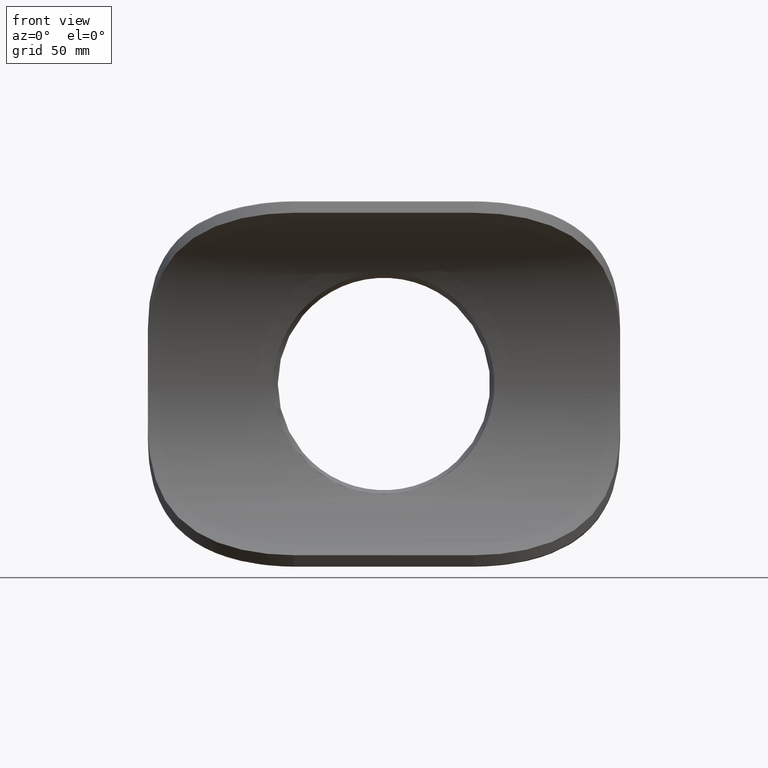
[diagram: clean part render]
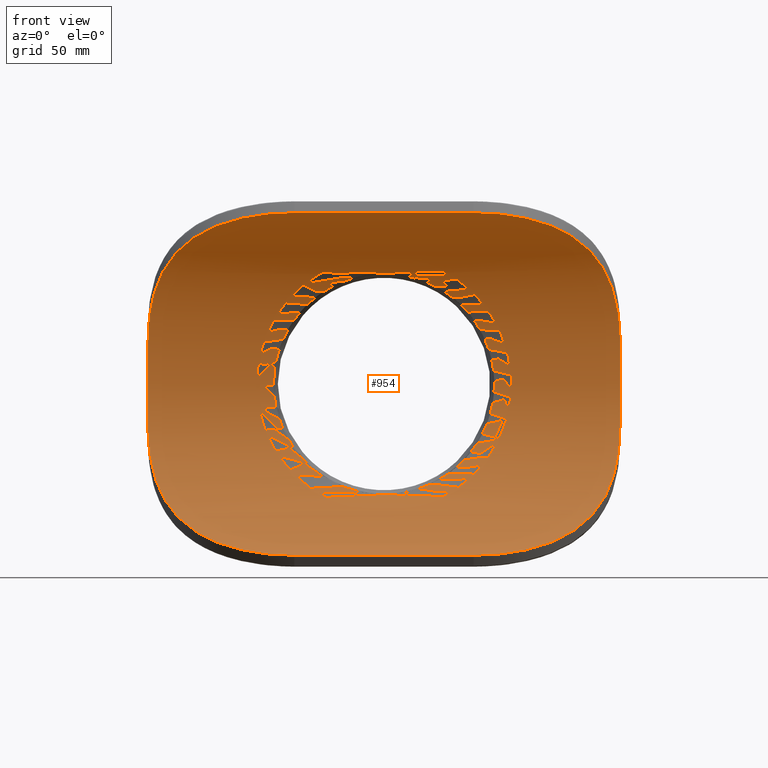
[diagram: same view with one face highlighted and labeled with its STEP entity id]
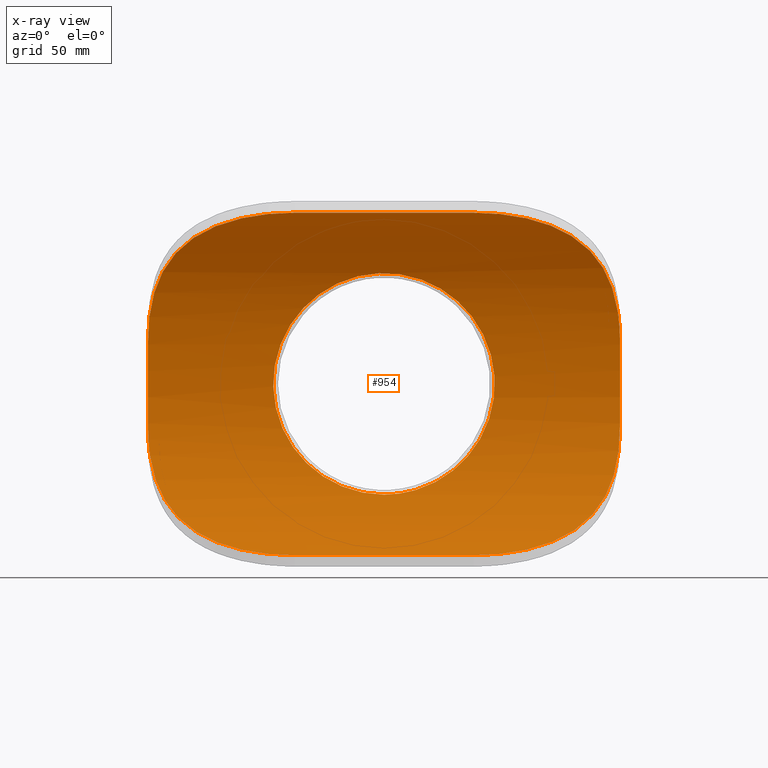
[diagram: x-ray of the same camera — body ghosted, the highlighted face saturated]
A machine part, front view. The second image highlights one B-rep face of the part: STEP entity #954.
The next image is the same camera in x-ray: the body ghosted, the highlighted face saturated — about 0% of this face is hidden behind the body in this view.
In plain terms, the highlighted cylindrical surface (partial cylindrical patch) has radius 125 mm, axis along (1, 0, 0).
Its self-contained STEP definition (entity closure, byte-faithful):
#20=LINE('',#2170,#48);
#42=LINE('',#2731,#70);
#48=VECTOR('',#1244,110.);
#70=VECTOR('',#1340,110.);
#98=B_SPLINE_CURVE_WITH_KNOTS('',3,(#1744,#1745,#1746,#1747,#1748,#1749,
#1750,#1751,#1752,#1753,#1754,#1755,#1756,#1757,#1758,#1759,#1760,#1761,
#1762,#1763,#1764,#1765,#1766,#1767,#1768,#1769,#1770,#1771,#1772,#1773,
#1774,#1775,#1776,#1777,#1778,#1779,#1780,#1781,#1782,#1783,#1784,#1785,
#1786,#1787,#1788,#1789,#1790,#1791,#1792,#1793,#1794,#1795,#1796,#1797,
#1798,#1799,#1800,#1801,#1802,#1803,#1804,#1805,#1806,#1807,#1808,#1809),
 .UNSPECIFIED.,.T.,.F.,(4,2,2,2,2,2,2,2,2,2,2,2,2,2,2,2,2,2,2,2,2,2,2,2,
2,2,2,2,2,2,2,2,4),(0.,1.31530072136476,2.63060144272952,3.94590216409428,
5.26120288545904,6.57120301846094,7.88120315146285,9.19120328446475,10.5012034174667,
11.8112035504686,13.1212036834705,14.4312038164724,15.7412039494743,17.056504670839,
18.3718053922038,19.6871061135686,21.0024068349333,22.3177075562981,23.6330082776628,
24.9483089990276,26.2636097203924,27.5736098533943,28.8836099863962,30.1936101193981,
31.5036102524,32.8136103854019,34.1236105184038,35.4336106514057,36.7436107844076,
38.0589115057724,39.3742122271371,40.6895129485019,42.0048136698666),
 .UNSPECIFIED.);
#107=B_SPLINE_CURVE_WITH_KNOTS('',3,(#2175,#2176,#2177,#2178,#2179,#2180,
#2181,#2182,#2183,#2184,#2185,#2186,#2187,#2188,#2189,#2190,#2191,#2192,
#2193,#2194),.UNSPECIFIED.,.F.,.F.,(4,2,2,2,2,2,2,2,2,4),(15.4930000426412,
16.9358712625984,18.0669147166328,19.1979581706672,20.3290016247016,21.4600450787359,
23.6403781182101,25.8207111576843,28.0010441971584,30.1813772366326),
 .UNSPECIFIED.);
#108=B_SPLINE_CURVE_WITH_KNOTS('',3,(#2202,#2203,#2204,#2205,#2206,#2207,
#2208,#2209,#2210,#2211,#2212,#2213,#2214,#2215,#2216,#2217,#2218,#2219,
#2220,#2221),.UNSPECIFIED.,.F.,.F.,(4,2,2,2,2,2,2,2,2,4),(30.1818136976187,
32.3621467370929,34.542479776567,36.7228128160412,38.9031458555153,40.0341893095497,
41.1652327635841,42.2962762176185,43.4273196716529,44.8701908916101),
 .UNSPECIFIED.);
#121=B_SPLINE_CURVE_WITH_KNOTS('',3,(#2684,#2685,#2686,#2687,#2688,#2689,
#2690,#2691,#2692,#2693,#2694,#2695,#2696,#2697,#2698,#2699,#2700,#2701,
#2702,#2703),.UNSPECIFIED.,.F.,.F.,(4,2,2,2,2,2,2,2,2,4),(15.4934365036274,
16.9363077235845,18.0673511776189,19.1983946316533,20.3294380856877,21.4604815397221,
23.6408145791962,25.8211476186704,28.0014806581445,30.1818136976187),
 .UNSPECIFIED.);
#122=B_SPLINE_CURVE_WITH_KNOTS('',3,(#2710,#2711,#2712,#2713,#2714,#2715,
#2716,#2717,#2718,#2719,#2720,#2721,#2722,#2723,#2724,#2725,#2726,#2727,
#2728,#2729),.UNSPECIFIED.,.F.,.F.,(4,2,2,2,2,2,2,2,2,4),(30.1810965952884,
32.3614296347626,34.5417626742367,36.7220957137109,38.9024287531851,40.0334722072194,
41.1645156612538,42.2955591152882,43.4266025693226,44.8694737892798),
 .UNSPECIFIED.);
#166=FACE_BOUND('',#363,.T.);
#195=CYLINDRICAL_SURFACE('',#1075,125.);
#261=FACE_OUTER_BOUND('',#362,.T.);
#362=EDGE_LOOP('',(#857,#858,#859,#860,#861,#862,#863,#864));
#363=EDGE_LOOP('',(#865));
#406=CIRCLE('',#1041,125.);
#421=CIRCLE('',#1073,125.);
#458=VERTEX_POINT('',#1743);
#475=VERTEX_POINT('',#2167);
#476=VERTEX_POINT('',#2169);
#477=VERTEX_POINT('',#2173);
#478=VERTEX_POINT('',#2196);
#479=VERTEX_POINT('',#2200);
#504=VERTEX_POINT('',#2681);
#505=VERTEX_POINT('',#2683);
#506=VERTEX_POINT('',#2706);
#547=EDGE_CURVE('',#458,#458,#98,.T.);
#573=EDGE_CURVE('',#476,#475,#20,.T.);
#576=EDGE_CURVE('',#477,#475,#107,.T.);
#578=EDGE_CURVE('',#478,#477,#406,.T.);
#580=EDGE_CURVE('',#479,#478,#108,.T.);
#622=EDGE_CURVE('',#504,#505,#121,.T.);
#625=EDGE_CURVE('',#506,#504,#421,.T.);
#626=EDGE_CURVE('',#476,#506,#122,.T.);
#627=EDGE_CURVE('',#505,#479,#42,.T.);
#857=ORIENTED_EDGE('',*,*,#622,.F.);
#858=ORIENTED_EDGE('',*,*,#625,.F.);
#859=ORIENTED_EDGE('',*,*,#626,.F.);
#860=ORIENTED_EDGE('',*,*,#573,.T.);
#861=ORIENTED_EDGE('',*,*,#576,.F.);
#862=ORIENTED_EDGE('',*,*,#578,.F.);
#863=ORIENTED_EDGE('',*,*,#580,.F.);
#864=ORIENTED_EDGE('',*,*,#627,.F.);
#865=ORIENTED_EDGE('',*,*,#547,.T.);
#954=ADVANCED_FACE('',(#261,#166),#195,.F.);
#1041=AXIS2_PLACEMENT_3D('',#2198,#1252,#1253);
#1073=AXIS2_PLACEMENT_3D('',#2708,#1334,#1335);
#1075=AXIS2_PLACEMENT_3D('',#2730,#1338,#1339);
#1244=DIRECTION('',(1.,0.,0.));
#1252=DIRECTION('center_axis',(-1.,0.,0.));
#1253=DIRECTION('ref_axis',(0.,-0.540846216681506,0.841121495327103));
#1334=DIRECTION('center_axis',(1.,0.,0.));
#1335=DIRECTION('ref_axis',(0.,-0.540846216681506,0.841121495327103));
#1338=DIRECTION('center_axis',(1.,0.,0.));
#1339=DIRECTION('ref_axis',(0.,-0.540846216681506,0.841121495327103));
#1340=DIRECTION('',(1.,0.,0.));
#1743=CARTESIAN_POINT('',(1.11022302462516E-15,-60.5143479783817,-68.));
#1744=CARTESIAN_POINT('Ctrl Pts',(1.11022302462516E-15,-60.5143479783817,
-68.));
#1745=CARTESIAN_POINT('Ctrl Pts',(-4.38433573788253,-60.5143479783817,-68.));
#1746=CARTESIAN_POINT('Ctrl Pts',(-8.87693599780954,-60.2312513240594,-67.5694323566686));
#1747=CARTESIAN_POINT('Ctrl Pts',(-17.74161186821,-59.1153327884321,-65.8001777856139));
#1748=CARTESIAN_POINT('Ctrl Pts',(-22.1141235865666,-58.2846910515145,-64.4623016466086));
#1749=CARTESIAN_POINT('Ctrl Pts',(-30.4501822718491,-56.2585026962542,-60.9689295107059));
#1750=CARTESIAN_POINT('Ctrl Pts',(-34.4220770449967,-55.0640880391323,-58.8106327545282));
#1751=CARTESIAN_POINT('Ctrl Pts',(-41.7516282625448,-52.5623620489658,-53.8550968162682));
#1752=CARTESIAN_POINT('Ctrl Pts',(-45.1094901788929,-51.2572886110577,-51.0570320624775));
#1753=CARTESIAN_POINT('Ctrl Pts',(-51.0450479318587,-48.7837568917998,-45.1214743095118));
#1754=CARTESIAN_POINT('Ctrl Pts',(-53.8412955177798,-47.522475136886,-41.769655563707));
#1755=CARTESIAN_POINT('Ctrl Pts',(-58.8014849667012,-45.1758743117686,-34.4379818798262));
#1756=CARTESIAN_POINT('Ctrl Pts',(-60.965803748194,-44.0922401343688,-30.4578427749443));
#1757=CARTESIAN_POINT('Ctrl Pts',(-64.4663875202082,-42.2957417356038,-22.104171965809));
#1758=CARTESIAN_POINT('Ctrl Pts',(-65.8054617460606,-41.582380643591,-17.7224480011975));
#1759=CARTESIAN_POINT('Ctrl Pts',(-67.5725859650084,-40.6342256809339,-8.85378929424724));
#1760=CARTESIAN_POINT('Ctrl Pts',(-68.,-40.4,-4.36666711000636));
#1761=CARTESIAN_POINT('Ctrl Pts',(-68.,-40.4,4.36666711000634));
#1762=CARTESIAN_POINT('Ctrl Pts',(-67.5725859650084,-40.6342256809339,8.85378929424722));
#1763=CARTESIAN_POINT('Ctrl Pts',(-65.8054617460606,-41.582380643591,17.7224480011975));
#1764=CARTESIAN_POINT('Ctrl Pts',(-64.4663875202082,-42.2957417356038,22.104171965809));
#1765=CARTESIAN_POINT('Ctrl Pts',(-60.965803748194,-44.0922401343688,30.4578427749442));
#1766=CARTESIAN_POINT('Ctrl Pts',(-58.8014849667012,-45.1758743117686,34.4379818798262));
#1767=CARTESIAN_POINT('Ctrl Pts',(-53.8412955177798,-47.522475136886,41.769655563707));
#1768=CARTESIAN_POINT('Ctrl Pts',(-51.0450479318587,-48.7837568917998,45.1214743095117));
#1769=CARTESIAN_POINT('Ctrl Pts',(-45.109490178893,-51.2572886110577,51.0570320624775));
#1770=CARTESIAN_POINT('Ctrl Pts',(-41.7516282625448,-52.5623620489658,53.8550968162682));
#1771=CARTESIAN_POINT('Ctrl Pts',(-34.4220770449968,-55.0640880391323,58.8106327545281));
#1772=CARTESIAN_POINT('Ctrl Pts',(-30.4501822718492,-56.2585026962542,60.9689295107059));
#1773=CARTESIAN_POINT('Ctrl Pts',(-22.1141235865666,-58.2846910515145,64.4623016466086));
#1774=CARTESIAN_POINT('Ctrl Pts',(-17.7416118682101,-59.1153327884321,65.8001777856139));
#1775=CARTESIAN_POINT('Ctrl Pts',(-8.87693599780956,-60.2312513240595,67.5694323566686));
#1776=CARTESIAN_POINT('Ctrl Pts',(-4.38433573788254,-60.5143479783817,68.));
#1777=CARTESIAN_POINT('Ctrl Pts',(4.38433573788252,-60.5143479783817,68.));
#1778=CARTESIAN_POINT('Ctrl Pts',(8.87693599780954,-60.2312513240594,67.5694323566686));
#1779=CARTESIAN_POINT('Ctrl Pts',(17.74161186821,-59.1153327884321,65.8001777856139));
#1780=CARTESIAN_POINT('Ctrl Pts',(22.1141235865666,-58.2846910515145,64.4623016466086));
#1781=CARTESIAN_POINT('Ctrl Pts',(30.4501822718491,-56.2585026962542,60.9689295107059));
#1782=CARTESIAN_POINT('Ctrl Pts',(34.4220770449968,-55.0640880391323,58.8106327545282));
#1783=CARTESIAN_POINT('Ctrl Pts',(41.7516282625448,-52.5623620489658,53.8550968162682));
#1784=CARTESIAN_POINT('Ctrl Pts',(45.1094901788929,-51.2572886110577,51.0570320624775));
#1785=CARTESIAN_POINT('Ctrl Pts',(51.0450479318587,-48.7837568917998,45.1214743095118));
#1786=CARTESIAN_POINT('Ctrl Pts',(53.8412955177798,-47.522475136886,41.769655563707));
#1787=CARTESIAN_POINT('Ctrl Pts',(58.8014849667012,-45.1758743117686,34.4379818798262));
#1788=CARTESIAN_POINT('Ctrl Pts',(60.965803748194,-44.0922401343688,30.4578427749443));
#1789=CARTESIAN_POINT('Ctrl Pts',(64.4663875202082,-42.2957417356038,22.104171965809));
#1790=CARTESIAN_POINT('Ctrl Pts',(65.8054617460606,-41.582380643591,17.7224480011975));
#1791=CARTESIAN_POINT('Ctrl Pts',(67.5725859650085,-40.6342256809339,8.85378929424726));
#1792=CARTESIAN_POINT('Ctrl Pts',(68.,-40.4,4.36666711000637));
#1793=CARTESIAN_POINT('Ctrl Pts',(68.,-40.4,-4.36666711000632));
#1794=CARTESIAN_POINT('Ctrl Pts',(67.5725859650085,-40.6342256809339,-8.85378929424718));
#1795=CARTESIAN_POINT('Ctrl Pts',(65.8054617460606,-41.582380643591,-17.7224480011974));
#1796=CARTESIAN_POINT('Ctrl Pts',(64.4663875202082,-42.2957417356037,-22.1041719658089));
#1797=CARTESIAN_POINT('Ctrl Pts',(60.9658037481941,-44.0922401343688,-30.4578427749442));
#1798=CARTESIAN_POINT('Ctrl Pts',(58.8014849667012,-45.1758743117686,-34.4379818798262));
#1799=CARTESIAN_POINT('Ctrl Pts',(53.8412955177798,-47.522475136886,-41.769655563707));
#1800=CARTESIAN_POINT('Ctrl Pts',(51.0450479318587,-48.7837568917998,-45.1214743095117));
#1801=CARTESIAN_POINT('Ctrl Pts',(45.1094901788929,-51.2572886110577,-51.0570320624775));
#1802=CARTESIAN_POINT('Ctrl Pts',(41.7516282625448,-52.5623620489658,-53.8550968162682));
#1803=CARTESIAN_POINT('Ctrl Pts',(34.4220770449968,-55.0640880391323,-58.8106327545282));
#1804=CARTESIAN_POINT('Ctrl Pts',(30.4501822718491,-56.2585026962542,-60.9689295107059));
#1805=CARTESIAN_POINT('Ctrl Pts',(22.1141235865666,-58.2846910515145,-64.4623016466086));
#1806=CARTESIAN_POINT('Ctrl Pts',(17.7416118682101,-59.1153327884321,-65.8001777856139));
#1807=CARTESIAN_POINT('Ctrl Pts',(8.87693599780958,-60.2312513240594,-67.5694323566686));
#1808=CARTESIAN_POINT('Ctrl Pts',(4.38433573788254,-60.5143479783817,-68.));
#1809=CARTESIAN_POINT('Ctrl Pts',(-1.11022302462516E-15,-60.5143479783817,
-68.));
#2167=CARTESIAN_POINT('',(55.,-97.7942229148117,-105.140186915888));
#2169=CARTESIAN_POINT('',(-55.,-97.7942229148117,-105.140186915888));
#2170=CARTESIAN_POINT('',(0.,-97.7942229148117,-105.140186915888));
#2173=CARTESIAN_POINT('',(145.,-42.7824096201661,-24.2884031884202));
#2175=CARTESIAN_POINT('Ctrl Pts',(145.,-42.7824096201661,-24.2884031884202));
#2176=CARTESIAN_POINT('Ctrl Pts',(145.,-43.730809082212,-29.0763036465718));
#2177=CARTESIAN_POINT('Ctrl Pts',(144.808202574666,-44.9534304768039,-33.7721946786565));
#2178=CARTESIAN_POINT('Ctrl Pts',(144.021011762505,-47.5732686983797,-41.9041254304049));
#2179=CARTESIAN_POINT('Ctrl Pts',(143.503236019198,-48.9349359278698,-45.5671663558428));
#2180=CARTESIAN_POINT('Ctrl Pts',(142.02255804067,-52.0309182331859,-52.8008437210258));
#2181=CARTESIAN_POINT('Ctrl Pts',(141.058441213241,-53.765036111694,-56.3713158894404));
#2182=CARTESIAN_POINT('Ctrl Pts',(138.648980184049,-57.4807823771672,-63.1944040346853));
#2183=CARTESIAN_POINT('Ctrl Pts',(137.201403476322,-59.4638241859268,-66.4508469271109));
#2184=CARTESIAN_POINT('Ctrl Pts',(133.879620170565,-63.500399032925,-72.4890317606754));
#2185=CARTESIAN_POINT('Ctrl Pts',(132.005044257946,-65.5529407364389,-75.2712331910957));
#2186=CARTESIAN_POINT('Ctrl Pts',(126.134839713175,-71.368663464976,-82.5892781478525));
#2187=CARTESIAN_POINT('Ctrl Pts',(121.431928092721,-75.3058817774638,-86.7982932304398));
#2188=CARTESIAN_POINT('Ctrl Pts',(110.59928929932,-82.6592123603116,-93.8341936471869));
#2189=CARTESIAN_POINT('Ctrl Pts',(104.4710139425,-86.0707135590272,-96.6681307382873));
#2190=CARTESIAN_POINT('Ctrl Pts',(91.2832477468966,-91.7439061648793,-101.057622318261));
#2191=CARTESIAN_POINT('Ctrl Pts',(84.2069163173403,-94.0104816863938,-102.624884873931));
#2192=CARTESIAN_POINT('Ctrl Pts',(69.6992795341315,-97.036778101603,-104.665181466056));
#2193=CARTESIAN_POINT('Ctrl Pts',(62.2677767982472,-97.7942229148117,-105.140186915888));
#2194=CARTESIAN_POINT('Ctrl Pts',(55.,-97.7942229148117,-105.140186915888));
#2196=CARTESIAN_POINT('',(145.,-42.7824096201661,24.2884031884201));
#2198=CARTESIAN_POINT('Origin',(145.,-165.4,0.));
#2200=CARTESIAN_POINT('',(55.,-97.7942229148117,105.140186915888));
#2202=CARTESIAN_POINT('Ctrl Pts',(55.,-97.7942229148117,105.140186915888));
#2203=CARTESIAN_POINT('Ctrl Pts',(62.2677767982472,-97.7942229148117,105.140186915888));
#2204=CARTESIAN_POINT('Ctrl Pts',(69.6992795341315,-97.036778101603,104.665181466056));
#2205=CARTESIAN_POINT('Ctrl Pts',(84.2069163173403,-94.0104816863937,102.624884873931));
#2206=CARTESIAN_POINT('Ctrl Pts',(91.2832477468966,-91.7439061648794,101.057622318261));
#2207=CARTESIAN_POINT('Ctrl Pts',(104.4710139425,-86.0707135590273,96.6681307382873));
#2208=CARTESIAN_POINT('Ctrl Pts',(110.59928929932,-82.6592123603116,93.8341936471869));
#2209=CARTESIAN_POINT('Ctrl Pts',(121.431928092721,-75.3058817774638,86.7982932304398));
#2210=CARTESIAN_POINT('Ctrl Pts',(126.134839713175,-71.368663464976,82.5892781478525));
#2211=CARTESIAN_POINT('Ctrl Pts',(132.005044257946,-65.5529407364389,75.2712331910956));
#2212=CARTESIAN_POINT('Ctrl Pts',(133.879620170565,-63.500399032925,72.4890317606754));
#2213=CARTESIAN_POINT('Ctrl Pts',(137.201403476322,-59.4638241859268,66.4508469271108));
#2214=CARTESIAN_POINT('Ctrl Pts',(138.648980184049,-57.4807823771671,63.1944040346853));
#2215=CARTESIAN_POINT('Ctrl Pts',(141.058441213241,-53.765036111694,56.3713158894403));
#2216=CARTESIAN_POINT('Ctrl Pts',(142.02255804067,-52.030918233186,52.8008437210258));
#2217=CARTESIAN_POINT('Ctrl Pts',(143.503236019198,-48.9349359278698,45.5671663558428));
#2218=CARTESIAN_POINT('Ctrl Pts',(144.021011762505,-47.5732686983797,41.9041254304049));
#2219=CARTESIAN_POINT('Ctrl Pts',(144.808202574666,-44.9534304768039,33.7721946786565));
#2220=CARTESIAN_POINT('Ctrl Pts',(145.,-43.730809082212,29.0763036465717));
#2221=CARTESIAN_POINT('Ctrl Pts',(145.,-42.7824096201661,24.2884031884201));
#2681=CARTESIAN_POINT('',(-145.,-42.7824096201661,24.2884031884201));
#2683=CARTESIAN_POINT('',(-55.,-97.7942229148117,105.140186915888));
#2684=CARTESIAN_POINT('Ctrl Pts',(-145.,-42.7824096201661,24.2884031884201));
#2685=CARTESIAN_POINT('Ctrl Pts',(-145.,-43.730809082212,29.0763036465717));
#2686=CARTESIAN_POINT('Ctrl Pts',(-144.808202574666,-44.9534304768039,33.7721946786565));
#2687=CARTESIAN_POINT('Ctrl Pts',(-144.021011762505,-47.5732686983797,41.9041254304049));
#2688=CARTESIAN_POINT('Ctrl Pts',(-143.503236019198,-48.9349359278698,45.5671663558428));
#2689=CARTESIAN_POINT('Ctrl Pts',(-142.02255804067,-52.030918233186,52.8008437210258));
#2690=CARTESIAN_POINT('Ctrl Pts',(-141.058441213241,-53.765036111694,56.3713158894403));
#2691=CARTESIAN_POINT('Ctrl Pts',(-138.648980184049,-57.4807823771671,63.1944040346853));
#2692=CARTESIAN_POINT('Ctrl Pts',(-137.201403476322,-59.4638241859268,66.4508469271108));
#2693=CARTESIAN_POINT('Ctrl Pts',(-133.879620170565,-63.500399032925,72.4890317606754));
#2694=CARTESIAN_POINT('Ctrl Pts',(-132.005044257946,-65.5529407364389,75.2712331910956));
#2695=CARTESIAN_POINT('Ctrl Pts',(-126.134839713175,-71.368663464976,82.5892781478525));
#2696=CARTESIAN_POINT('Ctrl Pts',(-121.431928092721,-75.3058817774638,86.7982932304397));
#2697=CARTESIAN_POINT('Ctrl Pts',(-110.59928929932,-82.6592123603116,93.8341936471869));
#2698=CARTESIAN_POINT('Ctrl Pts',(-104.4710139425,-86.0707135590272,96.6681307382873));
#2699=CARTESIAN_POINT('Ctrl Pts',(-91.2832477468966,-91.7439061648793,101.057622318261));
#2700=CARTESIAN_POINT('Ctrl Pts',(-84.2069163173403,-94.0104816863937,102.624884873931));
#2701=CARTESIAN_POINT('Ctrl Pts',(-69.6992795341315,-97.036778101603,104.665181466056));
#2702=CARTESIAN_POINT('Ctrl Pts',(-62.2677767982472,-97.7942229148117,105.140186915888));
#2703=CARTESIAN_POINT('Ctrl Pts',(-55.,-97.7942229148117,105.140186915888));
#2706=CARTESIAN_POINT('',(-145.,-42.7824096201661,-24.2884031884202));
#2708=CARTESIAN_POINT('Origin',(-145.,-165.4,0.));
#2710=CARTESIAN_POINT('Ctrl Pts',(-55.,-97.7942229148118,-105.140186915888));
#2711=CARTESIAN_POINT('Ctrl Pts',(-62.2677767982472,-97.7942229148118,-105.140186915888));
#2712=CARTESIAN_POINT('Ctrl Pts',(-69.6992795341315,-97.036778101603,-104.665181466056));
#2713=CARTESIAN_POINT('Ctrl Pts',(-84.2069163173403,-94.0104816863938,-102.624884873931));
#2714=CARTESIAN_POINT('Ctrl Pts',(-91.2832477468966,-91.7439061648794,-101.057622318261));
#2715=CARTESIAN_POINT('Ctrl Pts',(-104.4710139425,-86.0707135590272,-96.6681307382873));
#2716=CARTESIAN_POINT('Ctrl Pts',(-110.59928929932,-82.6592123603116,-93.8341936471869));
#2717=CARTESIAN_POINT('Ctrl Pts',(-121.431928092721,-75.3058817774638,-86.7982932304397));
#2718=CARTESIAN_POINT('Ctrl Pts',(-126.134839713175,-71.368663464976,-82.5892781478525));
#2719=CARTESIAN_POINT('Ctrl Pts',(-132.005044257946,-65.5529407364389,-75.2712331910957));
#2720=CARTESIAN_POINT('Ctrl Pts',(-133.879620170565,-63.500399032925,-72.4890317606754));
#2721=CARTESIAN_POINT('Ctrl Pts',(-137.201403476322,-59.4638241859268,-66.4508469271109));
#2722=CARTESIAN_POINT('Ctrl Pts',(-138.648980184049,-57.4807823771671,-63.1944040346853));
#2723=CARTESIAN_POINT('Ctrl Pts',(-141.058441213241,-53.765036111694,-56.3713158894403));
#2724=CARTESIAN_POINT('Ctrl Pts',(-142.02255804067,-52.0309182331859,-52.8008437210258));
#2725=CARTESIAN_POINT('Ctrl Pts',(-143.503236019198,-48.9349359278698,-45.5671663558428));
#2726=CARTESIAN_POINT('Ctrl Pts',(-144.021011762505,-47.5732686983797,-41.9041254304049));
#2727=CARTESIAN_POINT('Ctrl Pts',(-144.808202574666,-44.9534304768039,-33.7721946786565));
#2728=CARTESIAN_POINT('Ctrl Pts',(-145.,-43.730809082212,-29.0763036465717));
#2729=CARTESIAN_POINT('Ctrl Pts',(-145.,-42.7824096201661,-24.2884031884202));
#2730=CARTESIAN_POINT('Origin',(0.,-165.4,0.));
#2731=CARTESIAN_POINT('',(0.,-97.7942229148117,105.140186915888));